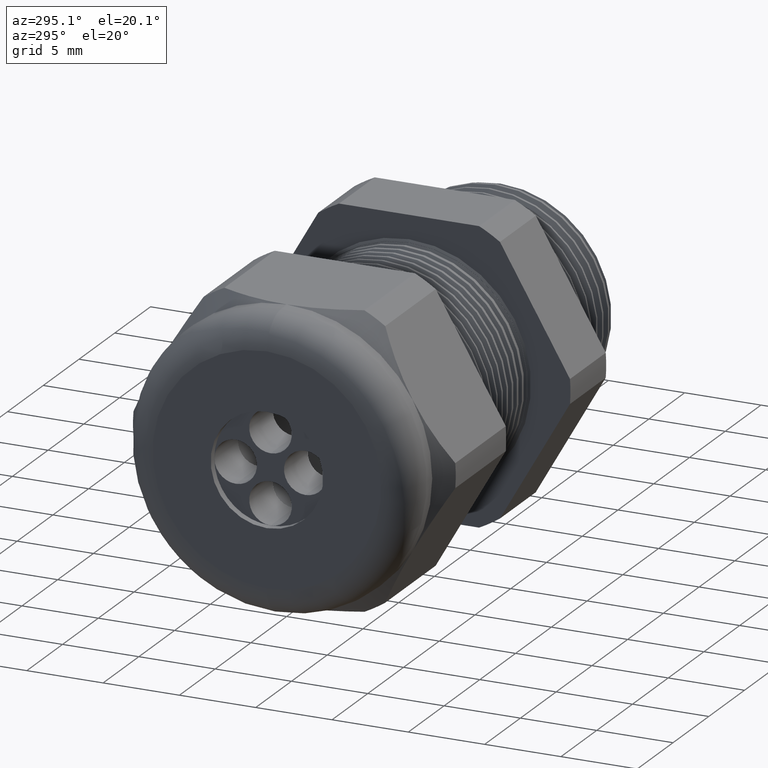
[diagram: clean part render]
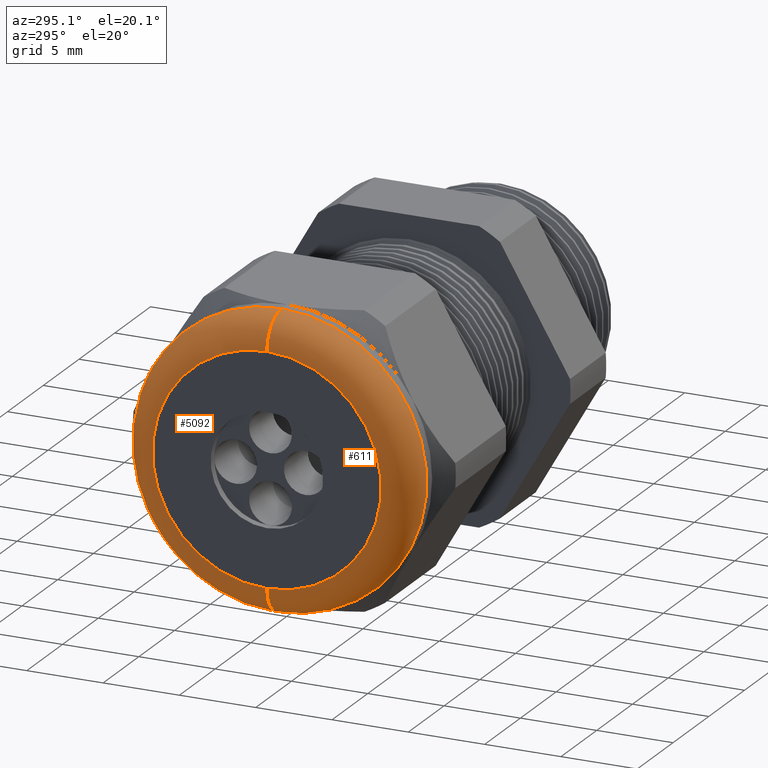
[diagram: same view with one multi-face feature highlighted, each face labeled with its STEP entity id]
A machine part, auxiliary view. The highlighted faces form ONE feature: a constant-radius fillet chain: 2 tangent blend faces with common blend radius 2.032 mm. The faces share edges in the B-rep.
Their STEP definitions:
[1] entity #611 (Torus):
#115 = EDGE_CURVE ( 'NONE', #5088, #5100, #1539, .T. ) ;
#124 = EDGE_CURVE ( 'NONE', #5089, #5093, #1527, .T. ) ;
#592 = ORIENTED_EDGE ( 'NONE', *, *, #124, .F. ) ;
#611 = ADVANCED_FACE ( 'NONE', ( #2449 ), #2448, .T. ) ;
#612 = EDGE_LOOP ( 'NONE', ( #613, #614, #615, #592 ) ) ;
#613 = ORIENTED_EDGE ( 'NONE', *, *, #5095, .F. ) ;
#614 = ORIENTED_EDGE ( 'NONE', *, *, #115, .F. ) ;
#615 = ORIENTED_EDGE ( 'NONE', *, *, #5081, .T. ) ;
#1523 = DIRECTION ( 'NONE',  ( 0.0000000000000000000, 0.0000000000000000000, 1.000000000000000000 ) ) ;
#1524 = DIRECTION ( 'NONE',  ( -1.000000000000000000, 0.0000000000000000000, 0.0000000000000000000 ) ) ;
#1525 = CARTESIAN_POINT ( 'NONE',  ( -1.289999999999999800, 0.0000000000000000000, 0.0000000000000000000 ) ) ;
#1526 = AXIS2_PLACEMENT_3D ( 'NONE', #1525, #1524, #1523 ) ;
#1527 = CIRCLE ( 'NONE', #1526, 0.2950000000000001000 ) ;
#1535 = DIRECTION ( 'NONE',  ( 0.0000000000000000000, 0.0000000000000000000, 1.000000000000000000 ) ) ;
#1536 = DIRECTION ( 'NONE',  ( 1.000000000000000000, 0.0000000000000000000, 0.0000000000000000000 ) ) ;
#1537 = CARTESIAN_POINT ( 'NONE',  ( -1.210000000000000000, 0.0000000000000000000, 0.0000000000000000000 ) ) ;
#1538 = AXIS2_PLACEMENT_3D ( 'NONE', #1537, #1536, #1535 ) ;
#1539 = CIRCLE ( 'NONE', #1538, 0.3750000000000001100 ) ;
#2445 = DIRECTION ( 'NONE',  ( 0.0000000000000000000, 0.0000000000000000000, 1.000000000000000000 ) ) ;
#2446 = DIRECTION ( 'NONE',  ( -1.000000000000000000, 0.0000000000000000000, 0.0000000000000000000 ) ) ;
#2447 = AXIS2_PLACEMENT_3D ( 'NONE', #2454, #2446, #2445 ) ;
#2448 = TOROIDAL_SURFACE ( 'NONE', #2447, 0.2950000000000001000, 0.08000000000000000200 ) ;
#2449 = FACE_OUTER_BOUND ( 'NONE', #612, .T. ) ;
#2454 = CARTESIAN_POINT ( 'NONE',  ( -1.210000000000000000, 0.0000000000000000000, 0.0000000000000000000 ) ) ;
#4447 = CARTESIAN_POINT ( 'NONE',  ( -1.289999999999999800, 4.102566777143634000E-017, -0.2950000000000001000 ) ) ;
#4448 = CARTESIAN_POINT ( 'NONE',  ( -1.210000000000000000, 4.592425496802576100E-017, 0.3750000000000001100 ) ) ;
#4459 = DIRECTION ( 'NONE',  ( 0.0000000000000000000, 0.0000000000000000000, -1.000000000000000000 ) ) ;
#4460 = DIRECTION ( 'NONE',  ( 0.0000000000000000000, -1.000000000000000000, 0.0000000000000000000 ) ) ;
#4461 = CARTESIAN_POINT ( 'NONE',  ( -1.210000000000000000, 0.0000000000000000000, 0.2950000000000001000 ) ) ;
#4462 = AXIS2_PLACEMENT_3D ( 'NONE', #4461, #4460, #4459 ) ;
#4463 = CIRCLE ( 'NONE', #4462, 0.08000000000000000200 ) ;
#4489 = CARTESIAN_POINT ( 'NONE',  ( -1.210000000000000000, 0.0000000000000000000, -0.3750000000000001100 ) ) ;
#4495 = DIRECTION ( 'NONE',  ( 0.0000000000000000000, -1.224646799147353500E-016, 1.000000000000000000 ) ) ;
#4496 = DIRECTION ( 'NONE',  ( 0.0000000000000000000, 1.000000000000000000, 1.224646799147353200E-016 ) ) ;
#4497 = CARTESIAN_POINT ( 'NONE',  ( -1.210000000000000000, 3.612708057484693200E-017, -0.2950000000000001000 ) ) ;
#4498 = AXIS2_PLACEMENT_3D ( 'NONE', #4497, #4496, #4495 ) ;
#4499 = CIRCLE ( 'NONE', #4498, 0.08000000000000000200 ) ;
#4500 = CARTESIAN_POINT ( 'NONE',  ( -1.289999999999999800, 0.0000000000000000000, 0.2950000000000001000 ) ) ;
#5081 = EDGE_CURVE ( 'NONE', #5088, #5093, #4463, .T. ) ;
#5088 = VERTEX_POINT ( 'NONE', #4448 ) ;
#5089 = VERTEX_POINT ( 'NONE', #4447 ) ;
#5093 = VERTEX_POINT ( 'NONE', #4500 ) ;
#5095 = EDGE_CURVE ( 'NONE', #5100, #5089, #4499, .T. ) ;
#5100 = VERTEX_POINT ( 'NONE', #4489 ) ;
[2] entity #5092 (Torus):
#4439 = TOROIDAL_SURFACE ( 'NONE', #4440, 0.2950000000000001000, 0.08000000000000000200 ) ;
#4440 = AXIS2_PLACEMENT_3D ( 'NONE', #4503, #4502, #4501 ) ;
#4441 = FACE_OUTER_BOUND ( 'NONE', #5054, .T. ) ;
#4442 = DIRECTION ( 'NONE',  ( 0.0000000000000000000, 0.0000000000000000000, 1.000000000000000000 ) ) ;
#4443 = DIRECTION ( 'NONE',  ( -1.000000000000000000, 0.0000000000000000000, 0.0000000000000000000 ) ) ;
#4444 = CARTESIAN_POINT ( 'NONE',  ( -1.289999999999999800, 0.0000000000000000000, 0.0000000000000000000 ) ) ;
#4445 = AXIS2_PLACEMENT_3D ( 'NONE', #4444, #4443, #4442 ) ;
#4446 = CIRCLE ( 'NONE', #4445, 0.2950000000000001000 ) ;
#4447 = CARTESIAN_POINT ( 'NONE',  ( -1.289999999999999800, 4.102566777143634000E-017, -0.2950000000000001000 ) ) ;
#4448 = CARTESIAN_POINT ( 'NONE',  ( -1.210000000000000000, 4.592425496802576100E-017, 0.3750000000000001100 ) ) ;
#4449 = DIRECTION ( 'NONE',  ( 0.0000000000000000000, 0.0000000000000000000, 1.000000000000000000 ) ) ;
#4450 = DIRECTION ( 'NONE',  ( 1.000000000000000000, 0.0000000000000000000, 0.0000000000000000000 ) ) ;
#4451 = CARTESIAN_POINT ( 'NONE',  ( -1.210000000000000000, 0.0000000000000000000, 0.0000000000000000000 ) ) ;
#4452 = AXIS2_PLACEMENT_3D ( 'NONE', #4451, #4450, #4449 ) ;
#4453 = CIRCLE ( 'NONE', #4452, 0.3750000000000001100 ) ;
#4459 = DIRECTION ( 'NONE',  ( 0.0000000000000000000, 0.0000000000000000000, -1.000000000000000000 ) ) ;
#4460 = DIRECTION ( 'NONE',  ( 0.0000000000000000000, -1.000000000000000000, 0.0000000000000000000 ) ) ;
#4461 = CARTESIAN_POINT ( 'NONE',  ( -1.210000000000000000, 0.0000000000000000000, 0.2950000000000001000 ) ) ;
#4462 = AXIS2_PLACEMENT_3D ( 'NONE', #4461, #4460, #4459 ) ;
#4463 = CIRCLE ( 'NONE', #4462, 0.08000000000000000200 ) ;
#4489 = CARTESIAN_POINT ( 'NONE',  ( -1.210000000000000000, 0.0000000000000000000, -0.3750000000000001100 ) ) ;
#4495 = DIRECTION ( 'NONE',  ( 0.0000000000000000000, -1.224646799147353500E-016, 1.000000000000000000 ) ) ;
#4496 = DIRECTION ( 'NONE',  ( 0.0000000000000000000, 1.000000000000000000, 1.224646799147353200E-016 ) ) ;
#4497 = CARTESIAN_POINT ( 'NONE',  ( -1.210000000000000000, 3.612708057484693200E-017, -0.2950000000000001000 ) ) ;
#4498 = AXIS2_PLACEMENT_3D ( 'NONE', #4497, #4496, #4495 ) ;
#4499 = CIRCLE ( 'NONE', #4498, 0.08000000000000000200 ) ;
#4500 = CARTESIAN_POINT ( 'NONE',  ( -1.289999999999999800, 0.0000000000000000000, 0.2950000000000001000 ) ) ;
#4501 = DIRECTION ( 'NONE',  ( 0.0000000000000000000, 0.0000000000000000000, 1.000000000000000000 ) ) ;
#4502 = DIRECTION ( 'NONE',  ( -1.000000000000000000, 0.0000000000000000000, 0.0000000000000000000 ) ) ;
#4503 = CARTESIAN_POINT ( 'NONE',  ( -1.210000000000000000, 0.0000000000000000000, 0.0000000000000000000 ) ) ;
#5054 = EDGE_LOOP ( 'NONE', ( #5083, #5090, #5099, #5098 ) ) ;
#5081 = EDGE_CURVE ( 'NONE', #5088, #5093, #4463, .T. ) ;
#5083 = ORIENTED_EDGE ( 'NONE', *, *, #5087, .F. ) ;
#5087 = EDGE_CURVE ( 'NONE', #5100, #5088, #4453, .T. ) ;
#5088 = VERTEX_POINT ( 'NONE', #4448 ) ;
#5089 = VERTEX_POINT ( 'NONE', #4447 ) ;
#5090 = ORIENTED_EDGE ( 'NONE', *, *, #5095, .T. ) ;
#5091 = EDGE_CURVE ( 'NONE', #5093, #5089, #4446, .T. ) ;
#5092 = ADVANCED_FACE ( 'NONE', ( #4441 ), #4439, .T. ) ;
#5093 = VERTEX_POINT ( 'NONE', #4500 ) ;
#5095 = EDGE_CURVE ( 'NONE', #5100, #5089, #4499, .T. ) ;
#5098 = ORIENTED_EDGE ( 'NONE', *, *, #5081, .F. ) ;
#5099 = ORIENTED_EDGE ( 'NONE', *, *, #5091, .F. ) ;
#5100 = VERTEX_POINT ( 'NONE', #4489 ) ;